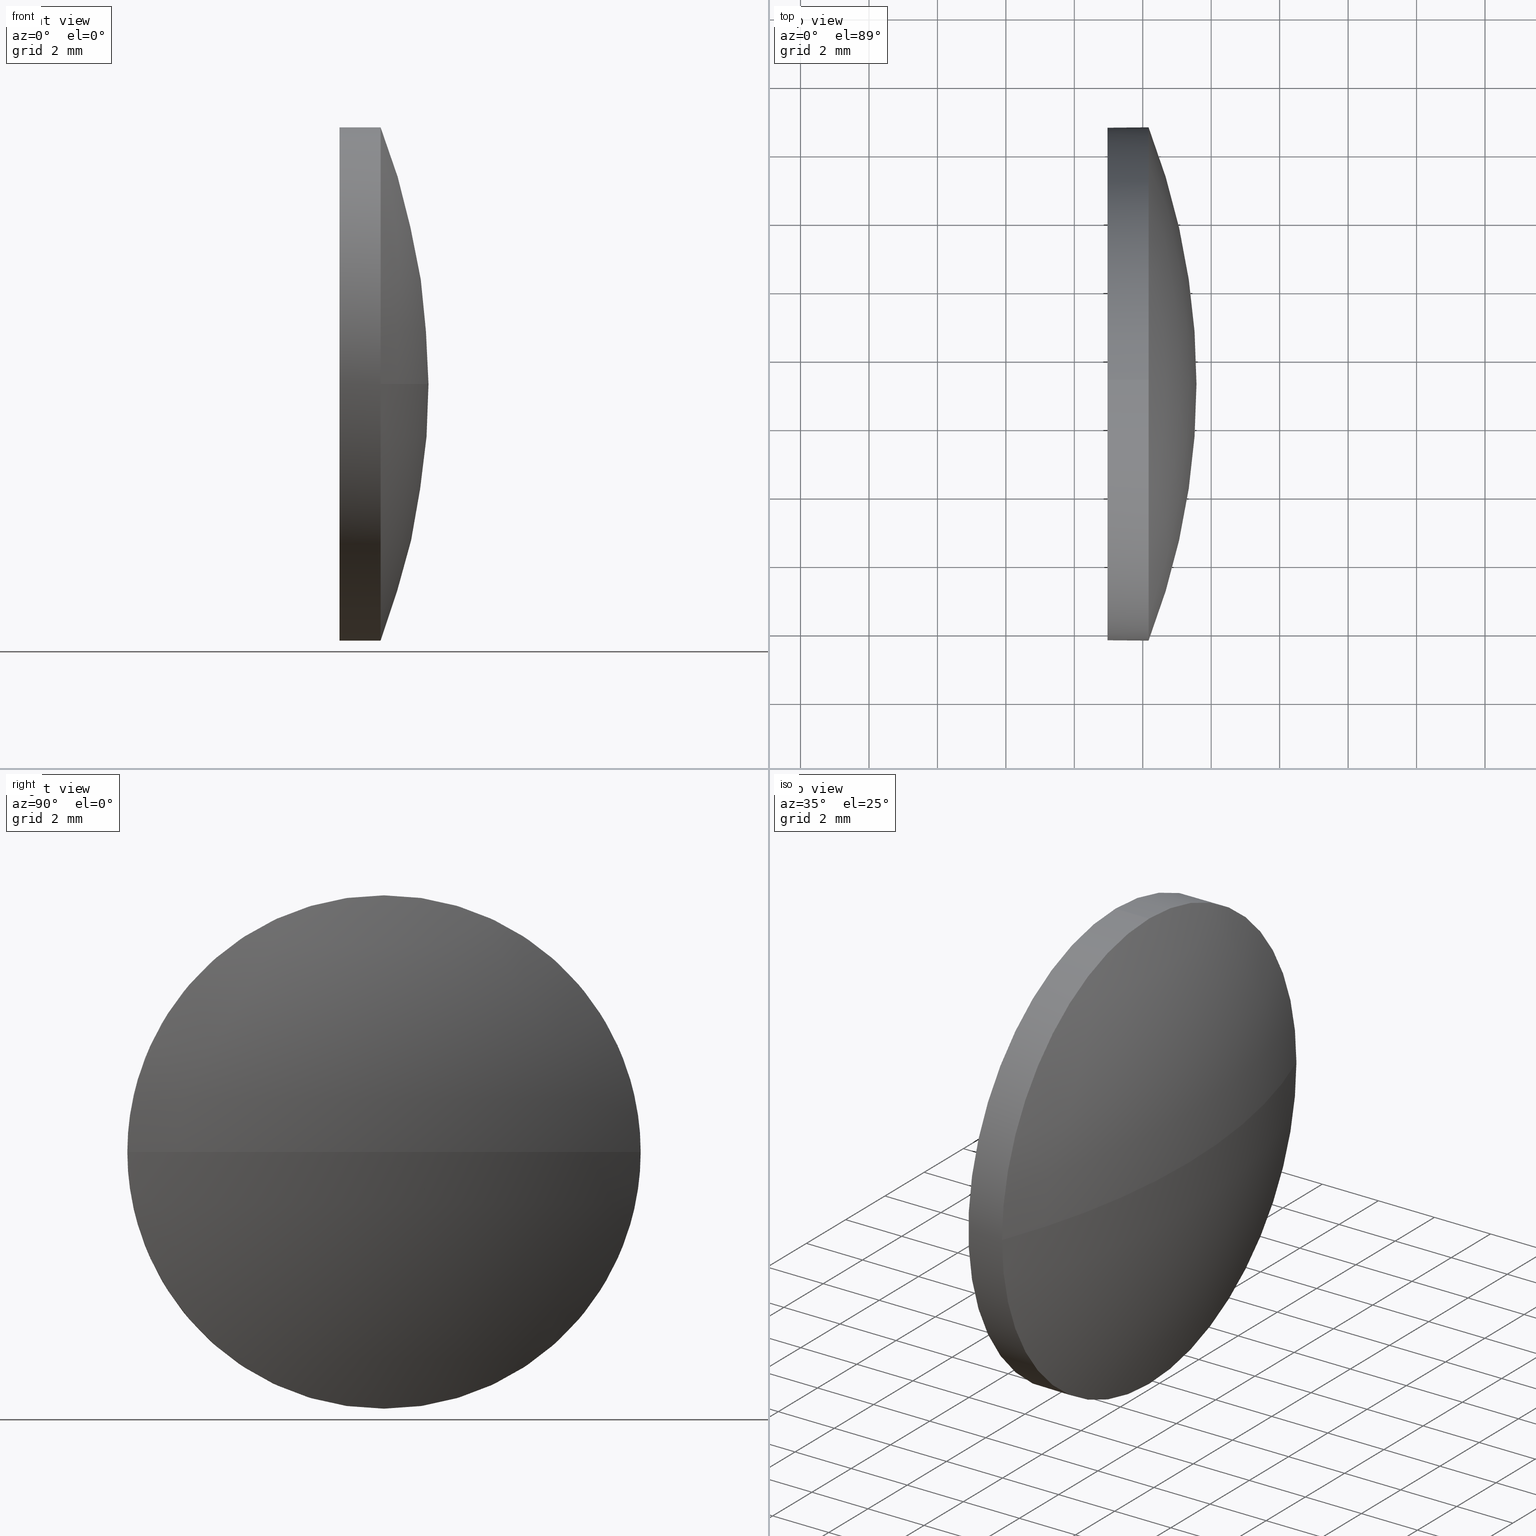
[diagram: canonical four-view strip — front | top / right | iso, engineering-drawing reading convention]
A machine part, canonical four-view strip (front | top / right | iso — engineering-drawing reading convention). The complete STEP part file that produces these views, byte-faithful:
ISO-10303-21;
HEADER;
FILE_DESCRIPTION (( 'STEP AP214' ),
    '1' );
FILE_NAME ('100371.STEP',
    '2019-06-04T06:20:53',
    ( '' ),
    ( '' ),
    'SwSTEP 2.0',
    'SolidWorks 2016',
    '' );
FILE_SCHEMA (( 'AUTOMOTIVE_DESIGN' ));
ENDSEC;

DATA;
#1 = AXIS2_PLACEMENT_3D ( 'NONE', #87, #11, #106 ) ;
#2 = APPLICATION_CONTEXT ( 'automotive_design' ) ;
#3 = EDGE_CURVE ( 'NONE', #139, #54, #163, .T. ) ;
#4 = ORIENTED_EDGE ( 'NONE', *, *, #83, .F. ) ;
#5 = ORIENTED_EDGE ( 'NONE', *, *, #33, .T. ) ;
#6 = AXIS2_PLACEMENT_3D ( 'NONE', #116, #22, #13 ) ;
#7 = DIRECTION ( 'NONE',  ( -1.000000000000000000, -0.0000000000000000000, -0.0000000000000000000 ) ) ;
#8 = EDGE_LOOP ( 'NONE', ( #150, #41, #133, #101, #130 ) ) ;
#9 = DIRECTION ( 'NONE',  ( -0.0000000000000000000, 0.0000000000000000000, -1.000000000000000000 ) ) ;
#10 = AXIS2_PLACEMENT_3D ( 'NONE', #27, #132, #72 ) ;
#11 = DIRECTION ( 'NONE',  ( -1.000000000000000000, -0.0000000000000000000, -0.0000000000000000000 ) ) ;
#12 =( LENGTH_UNIT ( ) NAMED_UNIT ( * ) SI_UNIT ( .MILLI., .METRE. ) );
#13 = DIRECTION ( 'NONE',  ( 0.0000000000000000000, 0.0000000000000000000, 1.000000000000000000 ) ) ;
#14 = UNCERTAINTY_MEASURE_WITH_UNIT (LENGTH_MEASURE( 1.000000000000000100E-005 ), #75, 'distance_accuracy_value', 'NONE');
#15 =( NAMED_UNIT ( * ) SI_UNIT ( $, .STERADIAN. ) SOLID_ANGLE_UNIT ( ) );
#16 = EDGE_LOOP ( 'NONE', ( #151, #5 ) ) ;
#17 = EDGE_LOOP ( 'NONE', ( #97, #110, #148, #67, #95 ) ) ;
#18 = CARTESIAN_POINT ( 'NONE',  ( 346.7806748411273900, 381.2277991723684600, 0.0000000000000000000 ) ) ;
#19 = PRESENTATION_STYLE_ASSIGNMENT (( #93 ) ) ;
#20 = EDGE_CURVE ( 'NONE', #165, #117, #122, .T. ) ;
#21 = ADVANCED_FACE ( 'NONE', ( #74 ), #98, .T. ) ;
#22 = DIRECTION ( 'NONE',  ( -1.000000000000000000, -0.0000000000000000000, -0.0000000000000000000 ) ) ;
#23 = CARTESIAN_POINT ( 'NONE',  ( 366.1699605554130700, 373.7277991723684600, -9.184850993605163700E-016 ) ) ;
#24 = DIRECTION ( 'NONE',  ( 1.000000000000000000, 0.0000000000000000000, 0.0000000000000000000 ) ) ;
#25 = EDGE_CURVE ( 'NONE', #80, #117, #62, .T. ) ;
#26 = CARTESIAN_POINT ( 'NONE',  ( 362.1291484246796100, 381.2277991723684600, 0.0000000000000000000 ) ) ;
#27 = CARTESIAN_POINT ( 'NONE',  ( 366.1699605554130700, 381.2277991723684600, 0.0000000000000000000 ) ) ;
#28 = CIRCLE ( 'NONE', #138, 7.500000000000007100 ) ;
#29 = DIRECTION ( 'NONE',  ( 1.000000000000000000, 0.0000000000000000000, 0.0000000000000000000 ) ) ;
#30 = PRESENTATION_STYLE_ASSIGNMENT (( #180 ) ) ;
#31 = EDGE_CURVE ( 'NONE', #47, #107, #28, .T. ) ;
#32 = DIRECTION ( 'NONE',  ( -1.000000000000000000, -0.0000000000000000000, -0.0000000000000000000 ) ) ;
#33 = EDGE_CURVE ( 'NONE', #117, #165, #84, .T. ) ;
#34 = ADVANCED_FACE ( 'NONE', ( #177 ), #77, .T. ) ;
#35 = VECTOR ( 'NONE', #32, 1000.000000000000000 ) ;
#36 = DIRECTION ( 'NONE',  ( 0.0000000000000000000, 1.000000000000000000, 1.224646799147353000E-016 ) ) ;
#37 = CYLINDRICAL_SURFACE ( 'NONE', #162, 7.500000000000007100 ) ;
#38 = DIRECTION ( 'NONE',  ( -0.0000000000000000000, 0.0000000000000000000, -1.000000000000000000 ) ) ;
#39 = DIRECTION ( 'NONE',  ( -1.000000000000000000, -0.0000000000000000000, -0.0000000000000000000 ) ) ;
#40 = FILL_AREA_STYLE_COLOUR ( '', #120 ) ;
#41 = ORIENTED_EDGE ( 'NONE', *, *, #25, .T. ) ;
#42 = PRODUCT_DEFINITION_FORMATION_WITH_SPECIFIED_SOURCE ( '�κ�', '', #146, .NOT_KNOWN. ) ;
#43 =( NAMED_UNIT ( * ) PLANE_ANGLE_UNIT ( ) SI_UNIT ( $, .RADIAN. ) );
#44 = EDGE_CURVE ( 'NONE', #47, #165, #45, .T. ) ;
#45 = LINE ( 'NONE', #58, #164 ) ;
#46 = MECHANICAL_DESIGN_GEOMETRIC_PRESENTATION_REPRESENTATION (  '', ( #111 ), #140 ) ;
#47 = VERTEX_POINT ( 'NONE', #145 ) ;
#48 = AXIS2_PLACEMENT_3D ( 'NONE', #179, #7, #65 ) ;
#49 = ADVANCED_BREP_SHAPE_REPRESENTATION ( '100371', ( #86, #99 ), #178 ) ;
#50 = SPHERICAL_SURFACE ( 'NONE', #147, 20.78928571428567200 ) ;
#51 = CIRCLE ( 'NONE', #149, 20.78928571428567600 ) ;
#52 = ADVANCED_FACE ( 'NONE', ( #161 ), #50, .T. ) ;
#53 = CARTESIAN_POINT ( 'NONE',  ( 366.1699605554130700, 381.2277991723684600, 0.0000000000000000000 ) ) ;
#54 = VERTEX_POINT ( 'NONE', #23 ) ;
#55 = DIRECTION ( 'NONE',  ( -1.000000000000000000, -0.0000000000000000000, -0.0000000000000000000 ) ) ;
#56 = SURFACE_STYLE_FILL_AREA ( #154 ) ;
#57 = AXIS2_PLACEMENT_3D ( 'NONE', #185, #55, #173 ) ;
#58 = CARTESIAN_POINT ( 'NONE',  ( 362.1291484246796100, 381.2277991723684600, 7.500000000000007100 ) ) ;
#59 = PRODUCT_CONTEXT ( 'NONE', #160, 'mechanical' ) ;
#60 = CLOSED_SHELL ( 'NONE', ( #21, #52, #34, #66, #141 ) ) ;
#61 = AXIS2_PLACEMENT_3D ( 'NONE', #118, #24, #129 ) ;
#62 = LINE ( 'NONE', #82, #35 ) ;
#63 = UNCERTAINTY_MEASURE_WITH_UNIT (LENGTH_MEASURE( 1.000000000000000100E-005 ), #12, 'distance_accuracy_value', 'NONE');
#64 = STYLED_ITEM ( 'NONE', ( #30 ), #86 ) ;
#65 = DIRECTION ( 'NONE',  ( 0.0000000000000000000, 0.0000000000000000000, 1.000000000000000000 ) ) ;
#66 = ADVANCED_FACE ( 'NONE', ( #184 ), #37, .T. ) ;
#67 = ORIENTED_EDGE ( 'NONE', *, *, #44, .T. ) ;
#68 = DIRECTION ( 'NONE',  ( -1.000000000000000000, -0.0000000000000000000, -0.0000000000000000000 ) ) ;
#69 = DIRECTION ( 'NONE',  ( 0.0000000000000000000, 0.0000000000000000000, 1.000000000000000000 ) ) ;
#70 = DIRECTION ( 'NONE',  ( 1.000000000000000000, 0.0000000000000000000, 0.0000000000000000000 ) ) ;
#71 = CARTESIAN_POINT ( 'NONE',  ( 366.1699605554130700, 381.2277991723684600, -7.500000000000007100 ) ) ;
#72 = DIRECTION ( 'NONE',  ( 0.0000000000000000000, 0.0000000000000000000, 1.000000000000000000 ) ) ;
#73 = PRESENTATION_LAYER_ASSIGNMENT (  '', '', ( #111 ) ) ;
#74 = FACE_OUTER_BOUND ( 'NONE', #8, .T. ) ;
#75 =( LENGTH_UNIT ( ) NAMED_UNIT ( * ) SI_UNIT ( .MILLI., .METRE. ) );
#76 = APPLICATION_PROTOCOL_DEFINITION ( 'draft international standard', 'automotive_design', 1998, #160 ) ;
#77 = SPHERICAL_SURFACE ( 'NONE', #109, 20.78928571428567200 ) ;
#78 = CIRCLE ( 'NONE', #6, 7.500000000000007100 ) ;
#79 = COLOUR_RGB ( '',1.000000000000000000, 1.000000000000000000, 1.000000000000000000 ) ;
#80 = VERTEX_POINT ( 'NONE', #71 ) ;
#81 = MECHANICAL_DESIGN_GEOMETRIC_PRESENTATION_REPRESENTATION (  '', ( #64 ), #92 ) ;
#82 = CARTESIAN_POINT ( 'NONE',  ( 362.1291484246796100, 381.2277991723684600, -7.500000000000007100 ) ) ;
#83 = EDGE_CURVE ( 'NONE', #139, #107, #51, .T. ) ;
#84 = CIRCLE ( 'NONE', #57, 7.500000000000007100 ) ;
#85 = DIRECTION ( 'NONE',  ( -0.0000000000000000000, 0.0000000000000000000, 1.000000000000000000 ) ) ;
#86 = MANIFOLD_SOLID_BREP ( '��ת1', #60 ) ;
#87 = CARTESIAN_POINT ( 'NONE',  ( 366.1699605554130700, 381.2277991723684600, 0.0000000000000000000 ) ) ;
#88 = CARTESIAN_POINT ( 'NONE',  ( 346.7806748411273900, 381.2277991723684600, 0.0000000000000000000 ) ) ;
#89 = EDGE_LOOP ( 'NONE', ( #126, #115, #104, #136 ) ) ;
#90 =( LENGTH_UNIT ( ) NAMED_UNIT ( * ) SI_UNIT ( .MILLI., .METRE. ) );
#91 = FILL_AREA_STYLE_COLOUR ( '', #79 ) ;
#92 =( GEOMETRIC_REPRESENTATION_CONTEXT ( 3 ) GLOBAL_UNCERTAINTY_ASSIGNED_CONTEXT ( ( #94 ) ) GLOBAL_UNIT_ASSIGNED_CONTEXT ( ( #90, #103, #152 ) ) REPRESENTATION_CONTEXT ( 'NONE', 'WORKASPACE' ) );
#93 = SURFACE_STYLE_USAGE ( .BOTH. , #134 ) ;
#94 = UNCERTAINTY_MEASURE_WITH_UNIT (LENGTH_MEASURE( 1.000000000000000100E-005 ), #90, 'distance_accuracy_value', 'NONE');
#95 = ORIENTED_EDGE ( 'NONE', *, *, #33, .F. ) ;
#96 = AXIS2_PLACEMENT_3D ( 'NONE', #143, #113, #167 ) ;
#97 = ORIENTED_EDGE ( 'NONE', *, *, #25, .F. ) ;
#98 = CYLINDRICAL_SURFACE ( 'NONE', #96, 7.500000000000007100 ) ;
#99 = AXIS2_PLACEMENT_3D ( 'NONE', #127, #176, #29 ) ;
#100 = EDGE_CURVE ( 'NONE', #107, #80, #78, .T. ) ;
#101 = ORIENTED_EDGE ( 'NONE', *, *, #44, .F. ) ;
#102 = CARTESIAN_POINT ( 'NONE',  ( 346.7806748411273900, 381.2277991723684600, 0.0000000000000000000 ) ) ;
#103 =( NAMED_UNIT ( * ) PLANE_ANGLE_UNIT ( ) SI_UNIT ( $, .RADIAN. ) );
#104 = ORIENTED_EDGE ( 'NONE', *, *, #31, .F. ) ;
#105 = CARTESIAN_POINT ( 'NONE',  ( 367.5699605554131000, 381.2277991723684600, 0.0000000000000000000 ) ) ;
#106 = DIRECTION ( 'NONE',  ( 0.0000000000000000000, 0.0000000000000000000, 1.000000000000000000 ) ) ;
#107 = VERTEX_POINT ( 'NONE', #171 ) ;
#108 = PRESENTATION_LAYER_ASSIGNMENT (  '', '', ( #64 ) ) ;
#109 = AXIS2_PLACEMENT_3D ( 'NONE', #18, #9, #168 ) ;
#110 = ORIENTED_EDGE ( 'NONE', *, *, #123, .T. ) ;
#111 = STYLED_ITEM ( 'NONE', ( #19 ), #49 ) ;
#112 = SURFACE_STYLE_FILL_AREA ( #175 ) ;
#113 = DIRECTION ( 'NONE',  ( -1.000000000000000000, -0.0000000000000000000, -0.0000000000000000000 ) ) ;
#114 = CIRCLE ( 'NONE', #10, 7.500000000000007100 ) ;
#115 = ORIENTED_EDGE ( 'NONE', *, *, #83, .T. ) ;
#116 = CARTESIAN_POINT ( 'NONE',  ( 366.1699605554130700, 381.2277991723684600, 0.0000000000000000000 ) ) ;
#117 = VERTEX_POINT ( 'NONE', #182 ) ;
#118 = CARTESIAN_POINT ( 'NONE',  ( 364.9699605554130800, 381.2277991723684600, 0.0000000000000000000 ) ) ;
#119 =( NAMED_UNIT ( * ) PLANE_ANGLE_UNIT ( ) SI_UNIT ( $, .RADIAN. ) );
#120 = COLOUR_RGB ( '',1.000000000000000000, 1.000000000000000000, 1.000000000000000000 ) ;
#121 = ORIENTED_EDGE ( 'NONE', *, *, #123, .F. ) ;
#122 = CIRCLE ( 'NONE', #48, 7.500000000000007100 ) ;
#123 = EDGE_CURVE ( 'NONE', #80, #54, #128, .T. ) ;
#124 = PRODUCT_RELATED_PRODUCT_CATEGORY ( 'part', '', ( #146 ) ) ;
#125 = EDGE_CURVE ( 'NONE', #54, #47, #114, .T. ) ;
#126 = ORIENTED_EDGE ( 'NONE', *, *, #3, .F. ) ;
#127 = CARTESIAN_POINT ( 'NONE',  ( 0.0000000000000000000, 0.0000000000000000000, 0.0000000000000000000 ) ) ;
#128 = CIRCLE ( 'NONE', #1, 7.500000000000007100 ) ;
#129 = DIRECTION ( 'NONE',  ( 0.0000000000000000000, 0.0000000000000000000, -1.000000000000000000 ) ) ;
#130 = ORIENTED_EDGE ( 'NONE', *, *, #31, .T. ) ;
#131 = DIRECTION ( 'NONE',  ( 0.0000000000000000000, 1.000000000000000000, 0.0000000000000000000 ) ) ;
#132 = DIRECTION ( 'NONE',  ( -1.000000000000000000, -0.0000000000000000000, -0.0000000000000000000 ) ) ;
#133 = ORIENTED_EDGE ( 'NONE', *, *, #20, .F. ) ;
#134 = SURFACE_SIDE_STYLE ('',( #112 ) ) ;
#135 = SHAPE_DEFINITION_REPRESENTATION ( #158, #49 ) ;
#136 = ORIENTED_EDGE ( 'NONE', *, *, #125, .F. ) ;
#137 = PRODUCT_DEFINITION_CONTEXT ( 'detailed design', #2, 'design' ) ;
#138 = AXIS2_PLACEMENT_3D ( 'NONE', #53, #155, #69 ) ;
#139 = VERTEX_POINT ( 'NONE', #105 ) ;
#140 =( GEOMETRIC_REPRESENTATION_CONTEXT ( 3 ) GLOBAL_UNCERTAINTY_ASSIGNED_CONTEXT ( ( #14 ) ) GLOBAL_UNIT_ASSIGNED_CONTEXT ( ( #75, #119, #159 ) ) REPRESENTATION_CONTEXT ( 'NONE', 'WORKASPACE' ) );
#141 = ADVANCED_FACE ( 'NONE', ( #181 ), #183, .F. ) ;
#142 = AXIS2_PLACEMENT_3D ( 'NONE', #102, #166, #36 ) ;
#143 = CARTESIAN_POINT ( 'NONE',  ( 362.1291484246796100, 381.2277991723684600, 0.0000000000000000000 ) ) ;
#144 = CARTESIAN_POINT ( 'NONE',  ( 346.7806748411273900, 381.2277991723684600, 0.0000000000000000000 ) ) ;
#145 = CARTESIAN_POINT ( 'NONE',  ( 366.1699605554130700, 381.2277991723684600, 7.500000000000007100 ) ) ;
#146 = PRODUCT ( '100371', '100371', '', ( #59 ) ) ;
#147 = AXIS2_PLACEMENT_3D ( 'NONE', #88, #38, #131 ) ;
#148 = ORIENTED_EDGE ( 'NONE', *, *, #125, .T. ) ;
#149 = AXIS2_PLACEMENT_3D ( 'NONE', #144, #85, #70 ) ;
#150 = ORIENTED_EDGE ( 'NONE', *, *, #100, .T. ) ;
#151 = ORIENTED_EDGE ( 'NONE', *, *, #20, .T. ) ;
#152 =( NAMED_UNIT ( * ) SI_UNIT ( $, .STERADIAN. ) SOLID_ANGLE_UNIT ( ) );
#153 = DIRECTION ( 'NONE',  ( 0.0000000000000000000, 0.0000000000000000000, 1.000000000000000000 ) ) ;
#154 = FILL_AREA_STYLE ('',( #40 ) ) ;
#155 = DIRECTION ( 'NONE',  ( -1.000000000000000000, -0.0000000000000000000, -0.0000000000000000000 ) ) ;
#156 = EDGE_LOOP ( 'NONE', ( #4, #170, #121, #186 ) ) ;
#157 = CARTESIAN_POINT ( 'NONE',  ( 364.9699605554130800, 381.2277991723684600, 7.500000000000007100 ) ) ;
#158 = PRODUCT_DEFINITION_SHAPE ( 'NONE', 'NONE',  #172 ) ;
#159 =( NAMED_UNIT ( * ) SI_UNIT ( $, .STERADIAN. ) SOLID_ANGLE_UNIT ( ) );
#160 = APPLICATION_CONTEXT ( 'automotive_design' ) ;
#161 = FACE_OUTER_BOUND ( 'NONE', #156, .T. ) ;
#162 = AXIS2_PLACEMENT_3D ( 'NONE', #26, #39, #153 ) ;
#163 = CIRCLE ( 'NONE', #142, 20.78928571428567600 ) ;
#164 = VECTOR ( 'NONE', #68, 1000.000000000000000 ) ;
#165 = VERTEX_POINT ( 'NONE', #157 ) ;
#166 = DIRECTION ( 'NONE',  ( 0.0000000000000000000, 1.224646799147353200E-016, -1.000000000000000000 ) ) ;
#167 = DIRECTION ( 'NONE',  ( 0.0000000000000000000, 0.0000000000000000000, 1.000000000000000000 ) ) ;
#168 = DIRECTION ( 'NONE',  ( 0.0000000000000000000, 1.000000000000000000, 0.0000000000000000000 ) ) ;
#169 = SURFACE_SIDE_STYLE ('',( #56 ) ) ;
#170 = ORIENTED_EDGE ( 'NONE', *, *, #3, .T. ) ;
#171 = CARTESIAN_POINT ( 'NONE',  ( 366.1699605554130700, 388.7277991723685200, 0.0000000000000000000 ) ) ;
#172 = PRODUCT_DEFINITION ( 'δ֪', '', #42, #137 ) ;
#173 = DIRECTION ( 'NONE',  ( 0.0000000000000000000, 0.0000000000000000000, 1.000000000000000000 ) ) ;
#174 = APPLICATION_PROTOCOL_DEFINITION ( 'draft international standard', 'automotive_design', 1998, #2 ) ;
#175 = FILL_AREA_STYLE ('',( #91 ) ) ;
#176 = DIRECTION ( 'NONE',  ( 0.0000000000000000000, 0.0000000000000000000, 1.000000000000000000 ) ) ;
#177 = FACE_OUTER_BOUND ( 'NONE', #89, .T. ) ;
#178 =( GEOMETRIC_REPRESENTATION_CONTEXT ( 3 ) GLOBAL_UNCERTAINTY_ASSIGNED_CONTEXT ( ( #63 ) ) GLOBAL_UNIT_ASSIGNED_CONTEXT ( ( #12, #43, #15 ) ) REPRESENTATION_CONTEXT ( 'NONE', 'WORKASPACE' ) );
#179 = CARTESIAN_POINT ( 'NONE',  ( 364.9699605554130800, 381.2277991723684600, 0.0000000000000000000 ) ) ;
#180 = SURFACE_STYLE_USAGE ( .BOTH. , #169 ) ;
#181 = FACE_OUTER_BOUND ( 'NONE', #16, .T. ) ;
#182 = CARTESIAN_POINT ( 'NONE',  ( 364.9699605554130800, 381.2277991723684600, -7.500000000000007100 ) ) ;
#183 = PLANE ( 'NONE',  #61 ) ;
#184 = FACE_OUTER_BOUND ( 'NONE', #17, .T. ) ;
#185 = CARTESIAN_POINT ( 'NONE',  ( 364.9699605554130800, 381.2277991723684600, 0.0000000000000000000 ) ) ;
#186 = ORIENTED_EDGE ( 'NONE', *, *, #100, .F. ) ;
ENDSEC;
END-ISO-10303-21;
